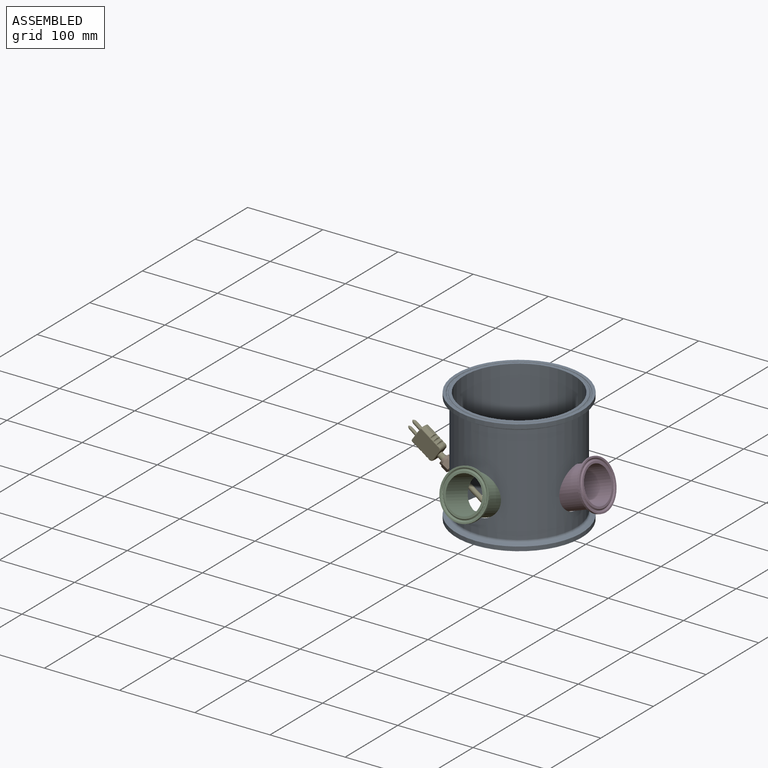
[diagram: assembled view]
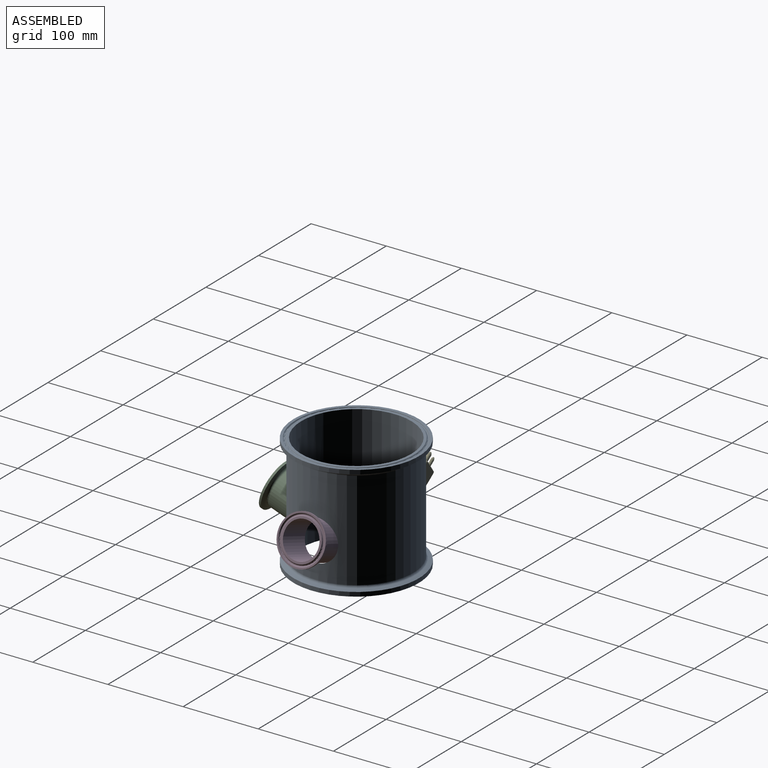
[diagram: assembled view, second angle]
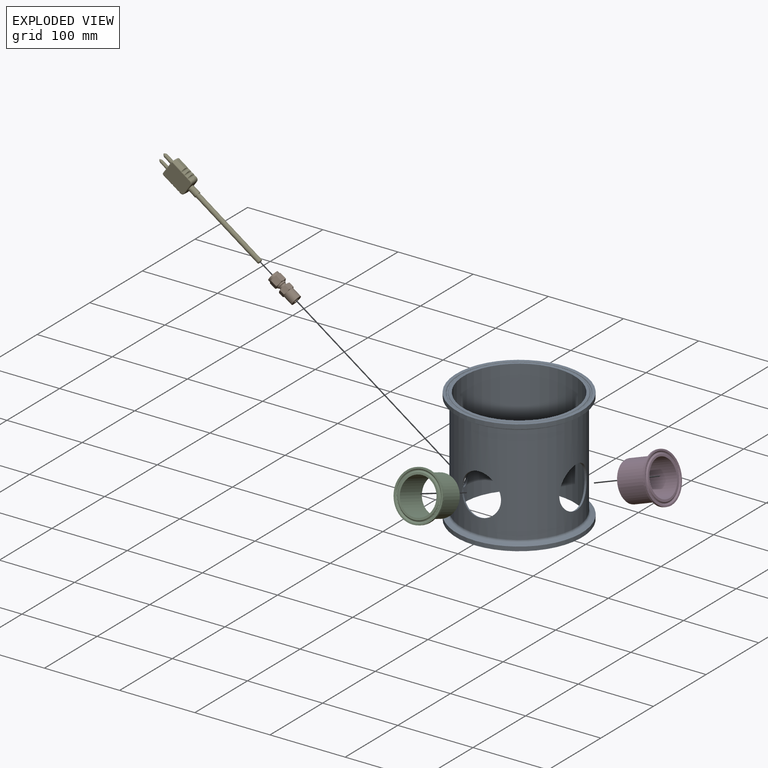
[diagram: exploded view]
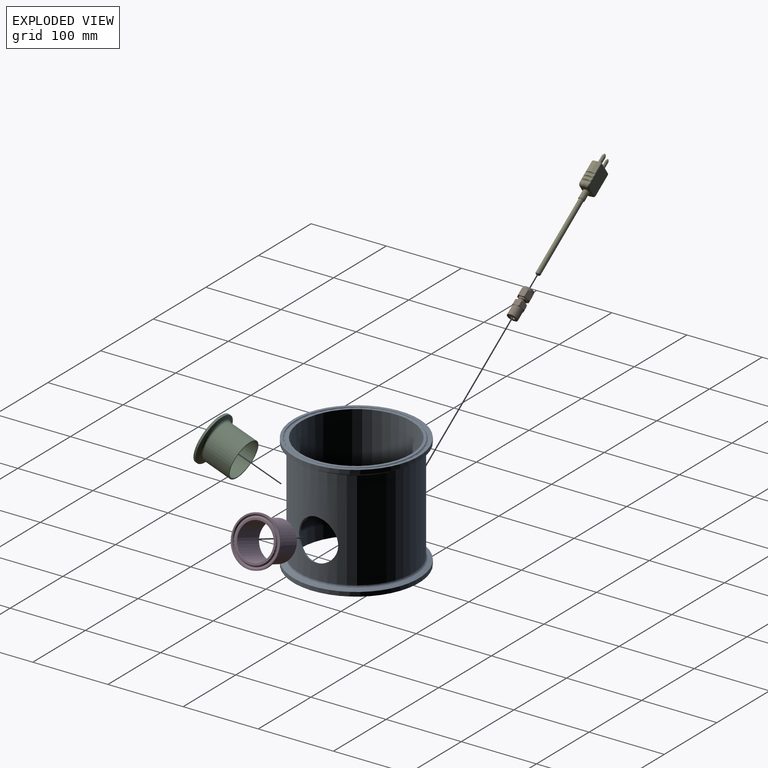
[diagram: exploded view, second angle]
ASSEMBLY  parts=5 mates=4
PART A: 25 faces, bbox 181.7x181.7x152.4 mm
  f0: cylinder r=73.43mm len=152.4mm, axis (0,0,1), area 65527.5mm2, adj f8,f9,f22,f23,f24
  f1: cylinder r=76.2mm len=152.4mm, axis (0,0,1), area 58175.8mm2, adj f18,f19,f22,f23,f24
  f2: plane 166.88x166.88mm, normal (0,0,1), area 1551.2mm2, adj f3,f21
  f3: torus R=80.43mm, axis (0,0,1), area 462.9mm2, adj f2,f4
  f4: cone r=79.7mm half-angle=23deg, axis (0,0,1), area 213.6mm2, adj f3,f5
  f5: torus R=78.44mm, axis (0,0,1), area 1376mm2, adj f4,f6
  f6: cone r=77.34mm half-angle=23deg, axis (0,0,-1), area 207.3mm2, adj f5,f7
  f7: torus R=76.44mm, axis (0,0,1), area 444.6mm2, adj f6,f8
  f8: plane 152.89x152.89mm, normal (0,0,1), area 1418.8mm2, adj f0,f7
  f9: plane 152.89x152.89mm, normal (0,0,-1), area 1418.8mm2, adj f0,f10
  f10: torus R=76.44mm, axis (0,0,1), area 444.6mm2, adj f9,f11
  f11: cone r=77.17mm half-angle=23deg, axis (0,0,1), area 207.3mm2, adj f10,f12
  f12: torus R=78.44mm, axis (0,0,1), area 1376mm2, adj f11,f13
  f13: cone r=79.53mm half-angle=23deg, axis (0,0,-1), area 213.6mm2, adj f12,f14
  f14: torus R=80.43mm, axis (0,0,1), area 462.9mm2, adj f13,f15
  f15: plane 166.88x166.88mm, normal (0,0,-1), area 1551.2mm2, adj f14,f16
  f16: cylinder r=83.44mm len=166.88mm, axis (0,0,1), area 2929.6mm2, adj f15,f17
  f17: cone r=83.44mm half-angle=70deg, axis (0,0,-1), area 2784.5mm2, adj f16,f18
  f18: torus R=79.38mm, axis (0,0,1), area 1875mm2, adj f1,f17
  f19: torus R=79.38mm, axis (0,0,1), area 1875mm2, adj f1,f20
  f20: cone r=78.29mm half-angle=70deg, axis (0,0,1), area 2784.5mm2, adj f19,f21
  f21: cylinder r=83.44mm len=166.88mm, axis (0,0,1), area 2929.6mm2, adj f2,f20
  f22: cylinder r=26.04mm len=56.42mm, axis (-0.94,0,-0.34), area 497.9mm2, adj f0,f1
  f23: cylinder r=26.04mm len=56.42mm, axis (0,-0.94,-0.34), area 498.6mm2, adj f0,f1
  f24: cylinder r=6.86mm len=18.68mm, axis (0,0.82,-0.57), area 145.9mm2, adj f0,f1
PART B: 47 faces, bbox 37.8x16.5x16.5 mm
  f0: cone r=7.66mm half-angle=60deg, axis (-1,0,0), area 3.1mm2, adj f7,f8,f12
  f1: cone r=7.66mm half-angle=60deg, axis (-1,0,0), area 3.1mm2, adj f6,f7,f12
  f2: cone r=7.66mm half-angle=60deg, axis (-1,0,0), area 3.1mm2, adj f6,f11,f12
  f3: cone r=7.66mm half-angle=60deg, axis (-1,0,0), area 3.1mm2, adj f10,f11,f12
  f4: cone r=7.66mm half-angle=60deg, axis (-1,0,0), area 3.1mm2, adj f9,f10,f12
  f5: cone r=7.66mm half-angle=60deg, axis (-1,0,0), area 3.1mm2, adj f8,f9,f12
  f6: plane 9.65x7.11mm, normal (0,0.87,0.5), area 75.7mm2, adj f1,f2,f7,f11,f13,f14
  f7: plane 9.65x8.21mm, normal (0,0,1), area 75.7mm2, adj f0,f1,f6,f8,f14,f15
  f8: plane 9.65x7.11mm, normal (0,-0.87,0.5), area 75.7mm2, adj f0,f5,f7,f9,f15,f16
  f9: plane 9.65x7.11mm, normal (0,-0.87,-0.5), area 75.7mm2, adj f4,f5,f8,f10,f16,f17
  f10: plane 9.65x8.21mm, normal (0,0,-1), area 75.7mm2, adj f3,f4,f9,f11,f17,f18
  f11: plane 9.65x7.11mm, normal (0,0.87,-0.5), area 75.7mm2, adj f2,f3,f6,f10,f13,f18
  f12: plane 14.22x14.22mm, normal (1,0,0), area 61.9mm2, adj f0,f1,f2,f3,f4,f5,f19
  f13: cone r=7.66mm half-angle=60deg, axis (1,0,0), area 3.1mm2, adj f6,f11,f20
  f14: cone r=7.66mm half-angle=60deg, axis (1,0,0), area 3.1mm2, adj f6,f7,f20
  f15: cone r=7.66mm half-angle=60deg, axis (1,0,0), area 3.1mm2, adj f7,f8,f20
  f16: cone r=7.66mm half-angle=60deg, axis (1,0,0), area 3.1mm2, adj f8,f9,f20
  f17: cone r=7.66mm half-angle=60deg, axis (1,0,0), area 3.1mm2, adj f9,f10,f20
  f18: cone r=7.66mm half-angle=60deg, axis (1,0,0), area 3.1mm2, adj f10,f11,f20
  f19: cylinder r=5.56mm len=11.11mm, axis (1,0,0), area 51mm2, adj f12,f21
  f20: cylinder r=7.11mm len=14.22mm, axis (1,0,0), area 136.2mm2, adj f13,f14,f15,f16,f17,f18,f22
  f21: cone r=5.02mm half-angle=45deg, axis (-1,0,0), area 48.1mm2, adj f19,f23
  f22: plane 14.22x14.22mm, normal (-1,0,0), area 127.2mm2, adj f20,f24
  f23: cylinder r=4.48mm len=8.95mm, axis (1,0,0), area 71.4mm2, adj f21,f25
  f24: cylinder r=3.17mm len=37.85mm, axis (1,0,0), area 755mm2, adj f22,f45
  f25: plane 14.29x14.29mm, normal (-1,0,0), area 97.4mm2, adj f23,f26,f27,f28,f29,f30,f31
  f26: cone r=7.7mm half-angle=65deg, axis (1,0,0), area 3mm2, adj f25,f32,f33
  f27: cone r=7.7mm half-angle=65deg, axis (1,0,0), area 3mm2, adj f25,f33,f34
  f28: cone r=7.7mm half-angle=65deg, axis (1,0,0), area 3mm2, adj f25,f34,f35
  f29: cone r=7.7mm half-angle=65deg, axis (1,0,0), area 3mm2, adj f25,f35,f37
  f30: cone r=7.7mm half-angle=65deg, axis (1,0,0), area 3mm2, adj f25,f32,f36
  f31: cone r=7.7mm half-angle=65deg, axis (1,0,0), area 3mm2, adj f25,f36,f37
  f32: plane 7.37x7.14mm, normal (0,-0.87,-0.5), area 57.8mm2, adj f26,f30,f33,f36,f38,f39
  f33: plane 7.37x7.14mm, normal (0,-0.87,0.5), area 57.8mm2, adj f26,f27,f32,f34,f39,f40
  f34: plane 8.25x7.37mm, normal (0,0,1), area 57.8mm2, adj f27,f28,f33,f35,f40,f41
  f35: plane 7.37x7.14mm, normal (0,0.87,0.5), area 57.8mm2, adj f28,f29,f34,f37,f41,f42
  f36: plane 8.25x7.37mm, normal (0,0,-1), area 57.8mm2, adj f30,f31,f32,f37,f38,f43
  f37: plane 7.37x7.14mm, normal (0,0.87,-0.5), area 57.8mm2, adj f29,f31,f35,f36,f42,f43
  f38: cone r=7.7mm half-angle=65deg, axis (-1,0,0), area 3mm2, adj f32,f36,f44
  f39: cone r=7.7mm half-angle=65deg, axis (-1,0,0), area 3mm2, adj f32,f33,f44
  f40: cone r=7.7mm half-angle=65deg, axis (-1,0,0), area 3mm2, adj f33,f34,f44
  f41: cone r=7.7mm half-angle=65deg, axis (-1,0,0), area 3mm2, adj f34,f35,f44
  f42: cone r=7.7mm half-angle=65deg, axis (-1,0,0), area 3mm2, adj f35,f37,f44
  f43: cone r=7.7mm half-angle=65deg, axis (-1,0,0), area 3mm2, adj f36,f37,f44
  f44: plane 14.29x14.29mm, normal (1,0,0), area 12.6mm2, adj f38,f39,f40,f41,f42,f43,f46
  f45: plane 13.72x13.72mm, normal (1,0,0), area 116.1mm2, adj f24,f46
  f46: cylinder r=6.86mm len=13.72mm, axis (-1,0,0), area 547.2mm2, adj f44,f45
PART C: 13 faces, bbox 65.3x65.3x44.5 mm
  f0: plane 63.91x63.91mm, normal (0,0,1), area 350.1mm2, adj f1,f11
  f1: torus R=30.16mm, axis (0,0,1), area 172.1mm2, adj f0,f2
  f2: cone r=29.43mm half-angle=23deg, axis (0,0,1), area 78.8mm2, adj f1,f3
  f3: torus R=28.17mm, axis (0,0,1), area 494.2mm2, adj f2,f4
  f4: cone r=27.07mm half-angle=23deg, axis (0,0,-1), area 72.4mm2, adj f3,f5
  f5: torus R=26.18mm, axis (0,0,1), area 153.8mm2, adj f4,f6
  f6: plane 52.36x52.36mm, normal (0,0,1), area 381mm2, adj f5,f7
  f7: cylinder r=23.75mm len=47.5mm, axis (0,0,1), area 6632.8mm2, adj f6,f12
  f8: cylinder r=25.4mm len=50.8mm, axis (0,0,1), area 5904.4mm2, adj f9,f12
  f9: torus R=28.57mm, axis (0,0,1), area 636.9mm2, adj f8,f10
  f10: cone r=27.49mm half-angle=70deg, axis (0,0,1), area 887.1mm2, adj f9,f11
  f11: cylinder r=31.95mm len=63.91mm, axis (0,0,1), area 571.1mm2, adj f0,f10
  f12: plane 50.8x50.8mm, normal (0,0,-1), area 254.9mm2, adj f7,f8
PART D: same geometry as C
PART E: 99 faces, bbox 12.7x25.4x160.3 mm
  f0: plane 5.3x1.61mm, normal (0.17,0.98,0), area 6.1mm2, adj f3,f37,f76,f87
  f1: plane 5.3x1.61mm, normal (0.17,0.98,0), area 6.1mm2, adj f4,f37,f75,f82
  f2: plane 5.3x0.93mm, normal (0.17,0.98,0), area 3mm2, adj f5,f24,f37,f88
  f3: plane 5.3x1.61mm, normal (-0.17,0.98,0), area 6.1mm2, adj f0,f46,f74,f85
  f4: plane 5.3x1.61mm, normal (-0.17,0.98,0), area 6.1mm2, adj f1,f46,f73,f80
  f5: plane 5.3x0.93mm, normal (-0.17,0.98,0), area 3mm2, adj f2,f25,f46,f86
  f6: plane 5.3x1.61mm, normal (0.17,-0.98,0), area 6.1mm2, adj f9,f34,f58,f63
  f7: plane 5.3x1.61mm, normal (0.17,-0.98,0), area 6.1mm2, adj f10,f34,f64,f69
  f8: plane 13.23x5.3mm, normal (0.17,-0.98,0), area 69.9mm2, adj f11,f30,f34,f70
  f9: plane 5.3x1.61mm, normal (-0.17,-0.98,0), area 6.1mm2, adj f6,f41,f56,f61
  f10: plane 5.3x1.61mm, normal (-0.17,-0.98,0), area 6.1mm2, adj f7,f41,f62,f67
  f11: plane 13.23x5.3mm, normal (-0.17,-0.98,0), area 69.9mm2, adj f8,f31,f41,f68
  f12: cylinder r=3.08mm len=100.33mm, axis (0,0,-1), area 1941.4mm2, adj f15,f98
  f13: plane 3.62x3.62mm, normal (0,0,-1), area 10.3mm2, adj f98
  f14: cylinder r=3.91mm len=11.3mm, axis (0,0,-1), area 277.3mm2, adj f15,f19
  f15: plane 7.81x7.81mm, normal (0,0,-1), area 18.1mm2, adj f12,f14
  f16: plane 30.84x20.98mm, normal (-1,0,0), area 644mm2, adj f40,f41,f42,f43,f44,f45,f46,f47
  f17: plane 30.84x20.98mm, normal (1,0,0), area 644mm2, adj f32,f33,f34,f35,f36,f37,f38,f39
  f18: plane 21.48x10.16mm, normal (0,0,1), area 179.7mm2, adj f28,f29,f30,f31,f38,f45,f90,f92
  f19: plane 17.62x10.16mm, normal (0,0,-1), area 122mm2, adj f14,f24,f25,f26,f27,f33,f42
  f20: plane 13.23x5.3mm, normal (0.17,0.98,0), area 69.9mm2, adj f21,f28,f37,f81
  f21: plane 13.23x5.3mm, normal (-0.17,0.98,0), area 69.9mm2, adj f20,f29,f46,f79
  f22: plane 5.3x0.93mm, normal (0.17,-0.98,0), area 3mm2, adj f23,f26,f34,f57
  f23: plane 5.3x0.93mm, normal (-0.17,-0.98,0), area 3mm2, adj f22,f27,f41,f55
  f24: cylinder r=3.81mm len=6.4mm, axis (0.98,-0.17,0), area 31.5mm2, adj f2,f19,f25,f35
  f25: cylinder r=3.81mm len=6.4mm, axis (-0.98,-0.17,0), area 31.5mm2, adj f5,f19,f24,f44
  f26: cylinder r=3.81mm len=6.4mm, axis (0.98,0.17,0), area 31.5mm2, adj f19,f22,f27,f32
  f27: cylinder r=3.81mm len=6.4mm, axis (-0.98,0.17,0), area 31.5mm2, adj f19,f23,f26,f40
  f28: cylinder r=1.91mm len=5.74mm, axis (0.98,-0.17,0), area 15.8mm2, adj f18,f20,f29,f39
  f29: cylinder r=1.91mm len=5.74mm, axis (-0.98,-0.17,0), area 15.8mm2, adj f18,f21,f28,f47
  f30: cylinder r=1.91mm len=5.74mm, axis (0.98,0.17,0), area 15.8mm2, adj f8,f18,f31,f36
  f31: cylinder r=1.91mm len=5.74mm, axis (-0.98,0.17,0), area 15.8mm2, adj f11,f18,f30,f43
  f32: bspline ~4.5x4.48mm, area 9.7mm2, adj f17,f26,f33,f34
  f33: cylinder r=1.27mm len=15.82mm, axis (0,1,0), area 31.6mm2, adj f17,f19,f32,f35
  f34: cylinder r=1.27mm len=27.66mm, axis (0,0,-1), area 36.1mm2, adj f6,f7,f8,f17,f22,f32,f36,f59
  f35: bspline ~4.5x3.99mm, area 9.7mm2, adj f17,f24,f33,f37
  f36: bspline ~2x1.98mm, area 4.1mm2, adj f17,f30,f34,f38
  f37: cylinder r=1.27mm len=27.66mm, axis (0,0,-1), area 36.1mm2, adj f0,f1,f2,f17,f20,f35,f39,f77
  f38: cylinder r=1.27mm len=19.69mm, axis (0,-1,0), area 39.3mm2, adj f17,f18,f36,f39
  f39: bspline ~2.24x1.98mm, area 4.1mm2, adj f17,f28,f37,f38
  f40: bspline ~4.5x4.48mm, area 9.7mm2, adj f16,f27,f41,f42
  f41: cylinder r=1.27mm len=27.66mm, axis (0,0,1), area 36.1mm2, adj f9,f10,f11,f16,f23,f40,f43,f54
  f42: cylinder r=1.27mm len=15.82mm, axis (0,-1,0), area 31.6mm2, adj f16,f19,f40,f44
  f43: bspline ~2x1.98mm, area 4.1mm2, adj f16,f31,f41,f45
  f44: bspline ~4.5x3.99mm, area 9.7mm2, adj f16,f25,f42,f46
  f45: cylinder r=1.27mm len=19.69mm, axis (0,1,0), area 39.3mm2, adj f16,f18,f43,f47
  f46: cylinder r=1.27mm len=27.66mm, axis (0,0,1), area 36.1mm2, adj f3,f4,f5,f16,f21,f44,f47,f72
  f47: bspline ~2.24x1.98mm, area 4.1mm2, adj f16,f29,f45,f46
  f48: cylinder r=1.91mm len=10.51mm, axis (1,0,0), area 46.8mm2, adj f84,f85,f86,f87,f88,f89
  f49: cylinder r=1.91mm len=10.51mm, axis (1,0,0), area 46.8mm2, adj f78,f79,f80,f81,f82,f83
  f50: cylinder r=1.91mm len=10.51mm, axis (1,0,0), area 46.8mm2, adj f72,f73,f74,f75,f76,f77
  f51: cylinder r=1.91mm len=10.51mm, axis (1,0,0), area 46.8mm2, adj f66,f67,f68,f69,f70,f71
  f52: cylinder r=1.91mm len=10.51mm, axis (1,0,0), area 46.8mm2, adj f60,f61,f62,f63,f64,f65
  f53: cylinder r=1.91mm len=10.51mm, axis (1,0,0), area 46.8mm2, adj f54,f55,f56,f57,f58,f59
  f54: bspline ~3.49x1.27mm, area 1.4mm2, adj f41,f53,f55,f56
  f55: bspline ~5.34x1.03mm, area 1.6mm2, adj f23,f53,f54,f57
  f56: bspline ~5.34x1.03mm, area 1.6mm2, adj f9,f53,f54,f58
  f57: bspline ~5.34x1.03mm, area 1.6mm2, adj f22,f53,f55,f59
  f58: bspline ~5.34x1.03mm, area 1.6mm2, adj f6,f53,f56,f59
  f59: bspline ~3.49x1.27mm, area 1.4mm2, adj f34,f53,f57,f58
  f60: bspline ~3.49x1.27mm, area 1.4mm2, adj f41,f52,f61,f62
  f61: bspline ~5.34x1.03mm, area 1.6mm2, adj f9,f52,f60,f63
  f62: bspline ~5.34x1.03mm, area 1.6mm2, adj f10,f52,f60,f64
  f63: bspline ~5.34x1.03mm, area 1.6mm2, adj f6,f52,f61,f65
  f64: bspline ~5.34x1.03mm, area 1.6mm2, adj f7,f52,f62,f65
  f65: bspline ~3.49x1.27mm, area 1.4mm2, adj f34,f52,f63,f64
  f66: bspline ~3.49x1.27mm, area 1.4mm2, adj f41,f51,f67,f68
  f67: bspline ~5.34x1.03mm, area 1.6mm2, adj f10,f51,f66,f69
  f68: bspline ~5.34x1.03mm, area 1.6mm2, adj f11,f51,f66,f70
  f69: bspline ~5.34x1.03mm, area 1.6mm2, adj f7,f51,f67,f71
  f70: bspline ~5.34x1.03mm, area 1.6mm2, adj f8,f51,f68,f71
  f71: bspline ~3.49x1.27mm, area 1.4mm2, adj f34,f51,f69,f70
  f72: bspline ~3.49x1.27mm, area 1.4mm2, adj f46,f50,f73,f74
  f73: bspline ~5.34x1.03mm, area 1.6mm2, adj f4,f50,f72,f75
  f74: bspline ~5.34x1.03mm, area 1.6mm2, adj f3,f50,f72,f76
  f75: bspline ~5.34x1.03mm, area 1.6mm2, adj f1,f50,f73,f77
  f76: bspline ~5.34x1.03mm, area 1.6mm2, adj f0,f50,f74,f77
  f77: bspline ~3.49x1.27mm, area 1.4mm2, adj f37,f50,f75,f76
  f78: bspline ~3.49x1.27mm, area 1.4mm2, adj f46,f49,f79,f80
  f79: bspline ~5.34x1.03mm, area 1.6mm2, adj f21,f49,f78,f81
  f80: bspline ~5.34x1.03mm, area 1.6mm2, adj f4,f49,f78,f82
  f81: bspline ~5.34x1.03mm, area 1.6mm2, adj f20,f49,f79,f83
  f82: bspline ~5.34x1.03mm, area 1.6mm2, adj f1,f49,f80,f83
  f83: bspline ~3.49x1.27mm, area 1.4mm2, adj f37,f49,f81,f82
  f84: bspline ~3.49x1.27mm, area 1.4mm2, adj f46,f48,f85,f86
  f85: bspline ~5.34x1.03mm, area 1.6mm2, adj f3,f48,f84,f87
  f86: bspline ~5.34x1.03mm, area 1.6mm2, adj f5,f48,f84,f88
  f87: bspline ~5.34x1.03mm, area 1.6mm2, adj f0,f48,f85,f89
  f88: bspline ~5.34x1.03mm, area 1.6mm2, adj f2,f48,f86,f89
  f89: bspline ~3.49x1.27mm, area 1.4mm2, adj f37,f48,f87,f88
  f90: cylinder r=1.97mm len=10mm, axis (0,0,-1), area 123.7mm2, adj f18,f96
  f91: plane 0.13x0.13mm, normal (0,0,1), area 0mm2, adj f95
  f92: cylinder r=2.35mm len=10mm, axis (0,0,-1), area 147.6mm2, adj f18,f97
  f93: plane 0.89x0.89mm, normal (0,0,1), area 0.6mm2, adj f94
  f94: cone r=0.44mm half-angle=45deg, axis (0,0,-1), area 2.4mm2, adj f93,f97
  f95: cone r=0.06mm half-angle=45deg, axis (0,0,-1), area 1mm2, adj f91,f96
  f96: revolved ~3.94x3.94mm, area 36.7mm2, adj f90,f95
  f97: revolved ~4.7x4.7mm, area 46.2mm2, adj f92,f94
  f98: torus R=1.81mm, axis (0,0,1), area 32.8mm2, adj f12,f13
PLACE A rot(axis=(0,0,-1),90deg) t=(-69.08,-127.99,-158.13)mm
PLACE B rot(axis=(0,1,0),35deg) t=(-168.65,-127.99,-265.15)mm
PLACE C rot(axis=(0.5,0.5,-0.71),109.2deg) t=(-69.08,-232.67,-241.66)mm
PLACE D rot(axis=(0,1,0),70deg) t=(35.6,-127.99,-241.66)mm
PLACE E rot(axis=(-0.42,-0.42,0.81),102.3deg) t=(-82.3,-127.99,-325.61)mm
MATE fastened A.f24 <-> B.f46  axis (0.82,0,-0.57) through (-143.89,-127.99,-282.49)mm
MATE fastened B.f24 <-> E.f12  axis (0.82,0,-0.57) through (-168.65,-127.99,-265.15)mm
MATE fastened A.f22 <-> C.f1  axis (0,0.94,-0.34) through (-69.08,-202.83,-252.52)mm
MATE fastened A.f23 <-> D.f1  axis (-0.94,0,-0.34) through (5.76,-127.99,-252.52)mm
